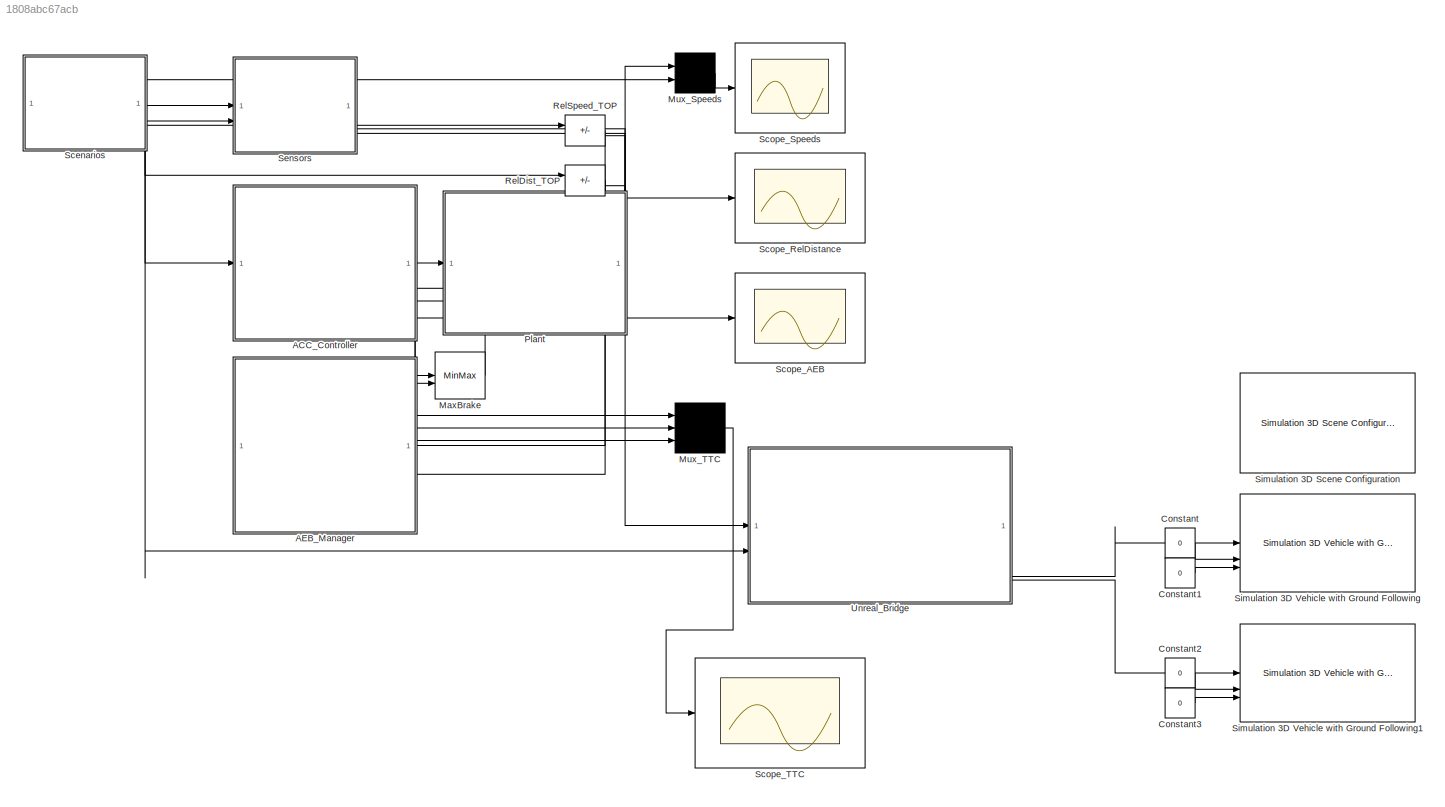
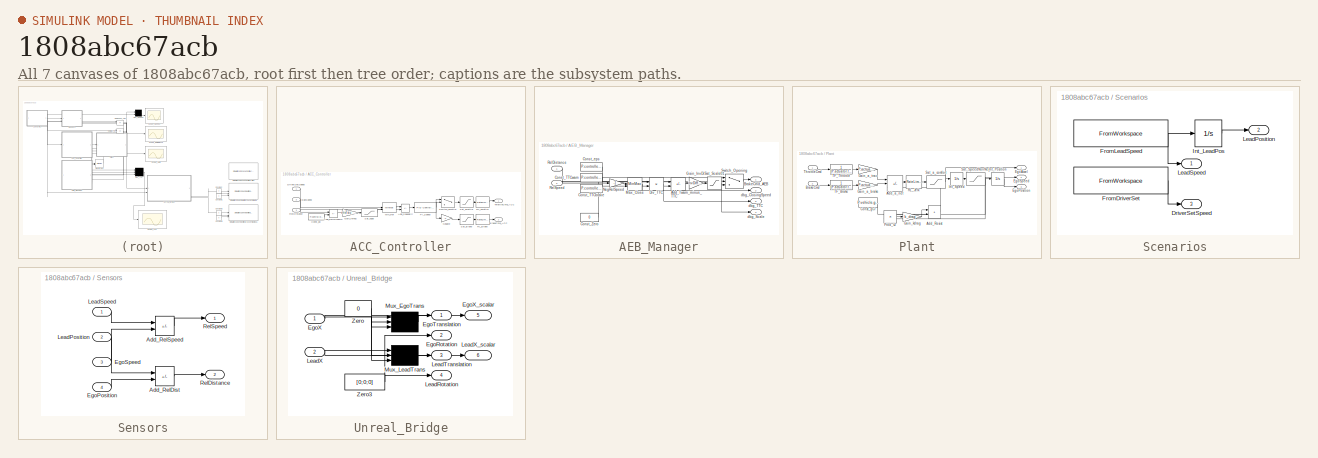
[diagram: thumbnail index - all 7 canvases of the model, root first then tree order]
MODEL slx_1808abc67acb
KIND model
CONFIG AbsTol = auto
CONFIG EnableMultiTasking = off
CONFIG FixedStep = auto
CONFIG MaxStep = auto
CONFIG MinStep = auto
CONFIG RelTol = 1e-3
CONFIG SampleTimeConstraint = Unconstrained
CONFIG SolverName = ode23t
CONFIG StartTime = 0.0
CONFIG StopTime = 40
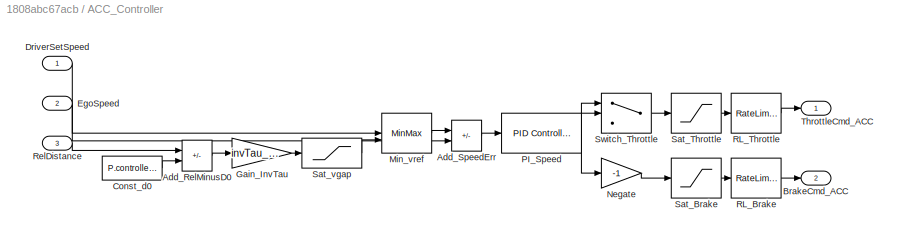
BLOCK [SubSystem] ACC_Controller
BLOCK [Sum] ACC_Controller/Add_RelMinusD0
  IconShape = rectangular
  Inputs = +-
BLOCK [Sum] ACC_Controller/Add_SpeedErr
  IconShape = rectangular
  Inputs = +-
BLOCK [Outport] ACC_Controller/BrakeCmd_ACC
  Port = 2
BLOCK [Constant] ACC_Controller/Const_d0
  Value = P.controller.minDistance
BLOCK [Inport] ACC_Controller/DriverSetSpeed
BLOCK [Inport] ACC_Controller/EgoSpeed
  Port = 2
BLOCK [Gain] ACC_Controller/Gain_InvTau
  Gain = invTau_ACC
BLOCK [MinMax] ACC_Controller/Min_vref
  Inputs = 2
BLOCK [Gain] ACC_Controller/Negate
  Gain = -1
BLOCK [Reference] ACC_Controller/PI_Speed  REF=slpidlib/PID Controller
  SourceBlock = slpidlib/PID Controller
  SourceType = PID 1dof
BLOCK [RateLimiter] ACC_Controller/RL_Brake
  FallingSlewLimit = -P.limits.rate_brake_down
  RisingSlewLimit = P.limits.rate_brake_up
  SampleTimeMode = inherited
BLOCK [RateLimiter] ACC_Controller/RL_Throttle
  FallingSlewLimit = -P.limits.rate_throttle_down
  RisingSlewLimit = P.limits.rate_throttle_up
  SampleTimeMode = inherited
BLOCK [Inport] ACC_Controller/RelDistance
  Port = 3
BLOCK [Saturate] ACC_Controller/Sat_Brake
  LowerLimit = 0
  UpperLimit = 0.3
BLOCK [Saturate] ACC_Controller/Sat_Throttle
  LowerLimit = 0
  UpperLimit = 1
BLOCK [Saturate] ACC_Controller/Sat_vgap
  LowerLimit = 0
  UpperLimit = inf
BLOCK [Switch] ACC_Controller/Switch_Throttle
  InputSameDT = off
  SaturateOnIntegerOverflow = off
BLOCK [Outport] ACC_Controller/ThrottleCmd_ACC
BLOCK [SubSystem] AEB_Manager
BLOCK [Sum] AEB_Manager/Add_Twarn_minus_TTC
  IconShape = rectangular
  Inputs = +-
BLOCK [Outport] AEB_Manager/BrakeCmd_AEB
BLOCK [Constant] AEB_Manager/Const_TTCbrake
  Value = P.controller.AEB.TTC_brake
BLOCK [Constant] AEB_Manager/Const_TTCwarn
  Value = P.controller.AEB.TTC_warn
BLOCK [Constant] AEB_Manager/Const_Zero
  Value = 0
BLOCK [Constant] AEB_Manager/Const_eps
  Value = P.controller.AEB.eps
BLOCK [Product] AEB_Manager/Div_TTC
  Inputs = */
BLOCK [Gain] AEB_Manager/Gain_InvDiff
  Gain = invDiffWarnBrake
BLOCK [MinMax] AEB_Manager/Max_Close
  Function = max
  Inputs = 2
BLOCK [Gain] AEB_Manager/NegRelSpeed
  Gain = -1
BLOCK [Inport] AEB_Manager/RelDistance
BLOCK [Inport] AEB_Manager/RelSpeed
  Port = 2
BLOCK [Saturate] AEB_Manager/Sat_Scale01
  LowerLimit = 0
  UpperLimit = 1
BLOCK [Switch] AEB_Manager/Switch_Opening
  InputSameDT = off
  SaturateOnIntegerOverflow = off
BLOCK [Outport] AEB_Manager/dbg_ClosingSpeed
  Port = 2
BLOCK [Outport] AEB_Manager/dbg_Scale
  Port = 4
BLOCK [Outport] AEB_Manager/dbg_TTC
  Port = 3
BLOCK [Constant] Constant
  Value = 0
BLOCK [Constant] Constant1
  Value = 0
BLOCK [Constant] Constant2
  Value = 0
BLOCK [Constant] Constant3
  Value = 0
BLOCK [MinMax] MaxBrake
  Function = max
  Inputs = 2
BLOCK [Mux] Mux_Speeds
  DisplayOption = bar
  Inputs = 2
BLOCK [Mux] Mux_TTC
  DisplayOption = bar
  Inputs = 3
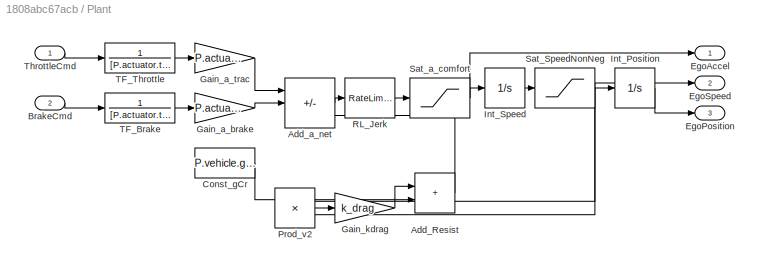
BLOCK [SubSystem] Plant
BLOCK [Sum] Plant/Add_Resist
  IconShape = rectangular
BLOCK [Sum] Plant/Add_a_net
  IconShape = rectangular
  Inputs = +--
BLOCK [Inport] Plant/BrakeCmd
  Port = 2
BLOCK [Constant] Plant/Const_gCr
  Value = P.vehicle.g*P.vehicle.Cr
BLOCK [Outport] Plant/EgoAccel
BLOCK [Outport] Plant/EgoPosition
  Port = 3
BLOCK [Outport] Plant/EgoSpeed
  Port = 2
BLOCK [Gain] Plant/Gain_a_brake
  Gain = P.actuator.a_brake_max
BLOCK [Gain] Plant/Gain_a_trac
  Gain = P.actuator.a_max
BLOCK [Gain] Plant/Gain_kdrag
  Gain = k_drag
BLOCK [Integrator] Plant/Int_Position
  InitialCondition = P.scenario.ego_x0
BLOCK [Integrator] Plant/Int_Speed
  InitialCondition = P.scenario.ego_v0
BLOCK [Product] Plant/Prod_v2
  Inputs = **
BLOCK [RateLimiter] Plant/RL_Jerk
  FallingSlewLimit = -P.limits.jerk_limit
  RisingSlewLimit = P.limits.jerk_limit
  SampleTimeMode = inherited
BLOCK [Saturate] Plant/Sat_SpeedNonNeg
  LowerLimit = 0
  UpperLimit = inf
BLOCK [Saturate] Plant/Sat_a_comfort
  LowerLimit = -P.limits.a_comfort_neg
  UpperLimit = P.limits.a_comfort_pos
BLOCK [TransferFcn] Plant/TF_Brake
  Denominator = [P.actuator.tau_brake 1]
  Numerator = 1
BLOCK [TransferFcn] Plant/TF_Throttle
  Denominator = [P.actuator.tau_throttle 1]
  Numerator = 1
BLOCK [Inport] Plant/ThrottleCmd
BLOCK [Sum] RelDist_TOP
  IconShape = rectangular
  Inputs = +-
BLOCK [Sum] RelSpeed_TOP
  IconShape = rectangular
  Inputs = +-
BLOCK [SubSystem] Scenarios
BLOCK [Outport] Scenarios/DriverSetSpeed
  Port = 3
BLOCK [FromWorkspace] Scenarios/FromDriverSet
  VariableName = driver_set_speed_ts
BLOCK [FromWorkspace] Scenarios/FromLeadSpeed
  VariableName = lead_speed_ts
BLOCK [Integrator] Scenarios/Int_LeadPos
  InitialCondition = P.scenario.lead_x0
BLOCK [Outport] Scenarios/LeadPosition
  Port = 2
BLOCK [Outport] Scenarios/LeadSpeed
BLOCK [Scope] Scope_AEB
  Floating = off
  GraphicalSettings = {"GraphicalSettings":{"LegacySettings":true,"Style":{"Style":{"PlotType":"Auto"}}}}
  NumInputPorts = 1
  OpenAtSimulationStart = on
  WasSavedAsWebScope = on
BLOCK [Scope] Scope_RelDistance
  Floating = off
  GraphicalSettings = {"GraphicalSettings":{"LegacySettings":true,"Style":{"Style":{"PlotType":"Auto"}}}}
  NumInputPorts = 1
  OpenAtSimulationStart = on
  WasSavedAsWebScope = on
BLOCK [Scope] Scope_Speeds
  Floating = off
  GraphicalSettings = {"GraphicalSettings":{"LegacySettings":true,"Style":{"Style":{"PlotType":"Auto"}}}}
  NumInputPorts = 1
  OpenAtSimulationStart = on
  WasSavedAsWebScope = on
BLOCK [Scope] Scope_TTC
  Floating = off
  GraphicalSettings = {"GraphicalSettings":{"LegacySettings":true,"Style":{"Style":{"PlotType":"Auto"}}}}
  NumInputPorts = 1
  OpenAtSimulationStart = on
  WasSavedAsWebScope = on
BLOCK [SubSystem] Sensors
BLOCK [Sum] Sensors/Add_RelDist
  IconShape = rectangular
  Inputs = +-
BLOCK [Sum] Sensors/Add_RelSpeed
  IconShape = rectangular
  Inputs = +-
BLOCK [Inport] Sensors/EgoPosition
  Port = 4
BLOCK [Inport] Sensors/EgoSpeed
  Port = 3
BLOCK [Inport] Sensors/LeadPosition
  Port = 2
BLOCK [Inport] Sensors/LeadSpeed
BLOCK [Outport] Sensors/RelDistance
  Port = 2
BLOCK [Outport] Sensors/RelSpeed
BLOCK [Reference] Simulation 3D Scene Configuration  REF=sim3dlib/Simulation 3D Scene Configuration
  LibrarySourceBlock = drivingsim3d/Simulation 3D Scene Configuration
  Priority = 0
  SourceBlock = sim3dlib/Simulation 3D Scene Configuration
  SourceType = Simulation 3D Scene Configuration
BLOCK [Reference] Simulation 3D Vehicle with Ground Following  REF=sim3dautolib/Simulation 3D Vehicle with Ground Following
  LibrarySourceBlock = drivingsim3d/Simulation 3D Vehicle with Ground Following
  Priority = -1
  SourceBlock = sim3dautolib/Simulation 3D Vehicle with Ground Following
  SourceType = Simulation 3D Vehicle with Ground Following
BLOCK [Reference] Simulation 3D Vehicle with Ground Following1  REF=sim3dautolib/Simulation 3D Vehicle with Ground Following
  LibrarySourceBlock = drivingsim3d/Simulation 3D Vehicle with Ground Following
  Priority = -1
  SourceBlock = sim3dautolib/Simulation 3D Vehicle with Ground Following
  SourceType = Simulation 3D Vehicle with Ground Following
BLOCK [SubSystem] Unreal_Bridge
BLOCK [Outport] Unreal_Bridge/EgoRotation
  Port = 2
BLOCK [Outport] Unreal_Bridge/EgoTranslation
BLOCK [Inport] Unreal_Bridge/EgoX
BLOCK [Outport] Unreal_Bridge/EgoX_scalar
  Port = 5
BLOCK [Outport] Unreal_Bridge/LeadRotation
  Port = 4
BLOCK [Outport] Unreal_Bridge/LeadTranslation
  Port = 3
BLOCK [Inport] Unreal_Bridge/LeadX
  Port = 2
BLOCK [Outport] Unreal_Bridge/LeadX_scalar
  Port = 6
BLOCK [Mux] Unreal_Bridge/Mux_EgoTrans
  DisplayOption = bar
  Inputs = 3
BLOCK [Mux] Unreal_Bridge/Mux_LeadTrans
  DisplayOption = bar
  Inputs = 3
BLOCK [Constant] Unreal_Bridge/Zero
  Value = 0
BLOCK [Constant] Unreal_Bridge/Zero3
  Value = [0;0;0]
LINE ACC_Controller/Add_RelMinusD0:1 -> ACC_Controller/Gain_InvTau:1
LINE ACC_Controller/Add_SpeedErr:1 -> ACC_Controller/PI_Speed:1
LINE ACC_Controller/Const_d0:1 -> ACC_Controller/Add_RelMinusD0:2
LINE ACC_Controller/DriverSetSpeed:1 -> ACC_Controller/Min_vref:1
LINE ACC_Controller/EgoSpeed:1 -> ACC_Controller/Add_SpeedErr:2
LINE ACC_Controller/Gain_InvTau:1 -> ACC_Controller/Sat_vgap:1
LINE ACC_Controller/Min_vref:1 -> ACC_Controller/Add_SpeedErr:1
LINE ACC_Controller/Negate:1 -> ACC_Controller/Sat_Brake:1
NET ACC_Controller/PI_Speed:1 -> ACC_Controller/Negate:1, ACC_Controller/Switch_Throttle:1, ACC_Controller/Switch_Throttle:2
LINE ACC_Controller/RL_Brake:1 -> ACC_Controller/BrakeCmd_ACC:1
LINE ACC_Controller/RL_Throttle:1 -> ACC_Controller/ThrottleCmd_ACC:1
LINE ACC_Controller/RelDistance:1 -> ACC_Controller/Add_RelMinusD0:1
LINE ACC_Controller/Sat_Brake:1 -> ACC_Controller/RL_Brake:1
LINE ACC_Controller/Sat_Throttle:1 -> ACC_Controller/RL_Throttle:1
LINE ACC_Controller/Sat_vgap:1 -> ACC_Controller/Min_vref:2
LINE ACC_Controller/Switch_Throttle:1 -> ACC_Controller/Sat_Throttle:1
LINE ACC_Controller:1 -> Plant:1
LINE ACC_Controller:2 -> MaxBrake:1
LINE AEB_Manager/Add_Twarn_minus_TTC:1 -> AEB_Manager/Gain_InvDiff:1
LINE AEB_Manager/Const_TTCwarn:1 -> AEB_Manager/Add_Twarn_minus_TTC:1
LINE AEB_Manager/Const_Zero:1 -> AEB_Manager/Switch_Opening:1
LINE AEB_Manager/Const_eps:1 -> AEB_Manager/Max_Close:2
NET AEB_Manager/Div_TTC:1 -> AEB_Manager/Add_Twarn_minus_TTC:2, AEB_Manager/dbg_TTC:1
LINE AEB_Manager/Gain_InvDiff:1 -> AEB_Manager/Sat_Scale01:1
NET AEB_Manager/Max_Close:1 -> AEB_Manager/Div_TTC:2, AEB_Manager/dbg_ClosingSpeed:1
LINE AEB_Manager/NegRelSpeed:1 -> AEB_Manager/Max_Close:1
LINE AEB_Manager/RelDistance:1 -> AEB_Manager/Div_TTC:1
NET AEB_Manager/RelSpeed:1 -> AEB_Manager/NegRelSpeed:1, AEB_Manager/Switch_Opening:2
NET AEB_Manager/Sat_Scale01:1 -> AEB_Manager/Switch_Opening:3, AEB_Manager/dbg_Scale:1
LINE AEB_Manager/Switch_Opening:1 -> AEB_Manager/BrakeCmd_AEB:1
NET AEB_Manager:1 -> MaxBrake:2, Scope_AEB:1
LINE AEB_Manager:2 -> Mux_TTC:1
LINE AEB_Manager:3 -> Mux_TTC:2
LINE AEB_Manager:4 -> Mux_TTC:3
LINE Constant1:1 -> Simulation 3D Vehicle with Ground Following:3
LINE Constant2:1 -> Simulation 3D Vehicle with Ground Following1:2
LINE Constant3:1 -> Simulation 3D Vehicle with Ground Following1:3
LINE Constant:1 -> Simulation 3D Vehicle with Ground Following:2
LINE MaxBrake:1 -> Plant:2
LINE Mux_Speeds:1 -> Scope_Speeds:1
LINE Mux_TTC:1 -> Scope_TTC:1
LINE Plant/Add_Resist:1 -> Plant/Add_a_net:3
LINE Plant/Add_a_net:1 -> Plant/RL_Jerk:1
LINE Plant/BrakeCmd:1 -> Plant/TF_Brake:1
LINE Plant/Const_gCr:1 -> Plant/Add_Resist:2
LINE Plant/Gain_a_brake:1 -> Plant/Add_a_net:2
LINE Plant/Gain_a_trac:1 -> Plant/Add_a_net:1
LINE Plant/Gain_kdrag:1 -> Plant/Add_Resist:1
LINE Plant/Int_Position:1 -> Plant/EgoPosition:1
LINE Plant/Int_Speed:1 -> Plant/Sat_SpeedNonNeg:1
LINE Plant/Prod_v2:1 -> Plant/Gain_kdrag:1
LINE Plant/RL_Jerk:1 -> Plant/Sat_a_comfort:1
NET Plant/Sat_SpeedNonNeg:1 -> Plant/EgoSpeed:1, Plant/Int_Position:1, Plant/Prod_v2:1, Plant/Prod_v2:2
NET Plant/Sat_a_comfort:1 -> Plant/EgoAccel:1, Plant/Int_Speed:1
LINE Plant/TF_Brake:1 -> Plant/Gain_a_brake:1
LINE Plant/TF_Throttle:1 -> Plant/Gain_a_trac:1
LINE Plant/ThrottleCmd:1 -> Plant/TF_Throttle:1
NET Plant:2 -> ACC_Controller:2, Mux_Speeds:1, RelSpeed_TOP:2, Sensors:3
NET Plant:3 -> RelDist_TOP:2, Sensors:4, Unreal_Bridge:1
NET RelDist_TOP:1 -> ACC_Controller:3, AEB_Manager:1, Scope_RelDistance:1
LINE RelSpeed_TOP:1 -> AEB_Manager:2
LINE Scenarios/FromDriverSet:1 -> Scenarios/DriverSetSpeed:1
NET Scenarios/FromLeadSpeed:1 -> Scenarios/Int_LeadPos:1, Scenarios/LeadSpeed:1
LINE Scenarios/Int_LeadPos:1 -> Scenarios/LeadPosition:1
NET Scenarios:1 -> Mux_Speeds:2, RelSpeed_TOP:1, Sensors:1
NET Scenarios:2 -> RelDist_TOP:1, Sensors:2, Unreal_Bridge:2
LINE Scenarios:3 -> ACC_Controller:1
LINE Sensors/Add_RelDist:1 -> Sensors/RelDistance:1
LINE Sensors/Add_RelSpeed:1 -> Sensors/RelSpeed:1
LINE Sensors/EgoPosition:1 -> Sensors/Add_RelDist:2
LINE Sensors/EgoSpeed:1 -> Sensors/Add_RelSpeed:2
LINE Sensors/LeadPosition:1 -> Sensors/Add_RelDist:1
LINE Sensors/LeadSpeed:1 -> Sensors/Add_RelSpeed:1
NET Unreal_Bridge/EgoX:1 -> Unreal_Bridge/EgoX_scalar:1, Unreal_Bridge/Mux_EgoTrans:1
NET Unreal_Bridge/LeadX:1 -> Unreal_Bridge/LeadX_scalar:1, Unreal_Bridge/Mux_LeadTrans:1
LINE Unreal_Bridge/Mux_EgoTrans:1 -> Unreal_Bridge/EgoTranslation:1
LINE Unreal_Bridge/Mux_LeadTrans:1 -> Unreal_Bridge/LeadTranslation:1
NET Unreal_Bridge/Zero3:1 -> Unreal_Bridge/EgoRotation:1, Unreal_Bridge/LeadRotation:1
NET Unreal_Bridge/Zero:1 -> Unreal_Bridge/Mux_EgoTrans:2, Unreal_Bridge/Mux_EgoTrans:3, Unreal_Bridge/Mux_LeadTrans:2, Unreal_Bridge/Mux_LeadTrans:3
LINE Unreal_Bridge:5 -> Simulation 3D Vehicle with Ground Following:1
LINE Unreal_Bridge:6 -> Simulation 3D Vehicle with Ground Following1:1
note: NET lines group one-source signal fan-out (src -> all destinations, sorted); 1:1 wires keep LINE
